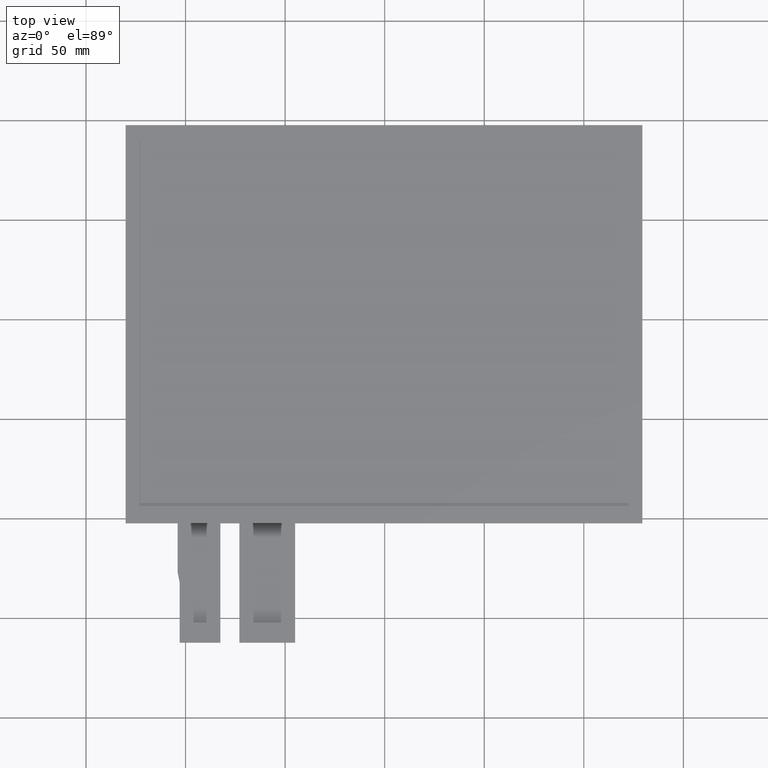
[diagram: clean part render]
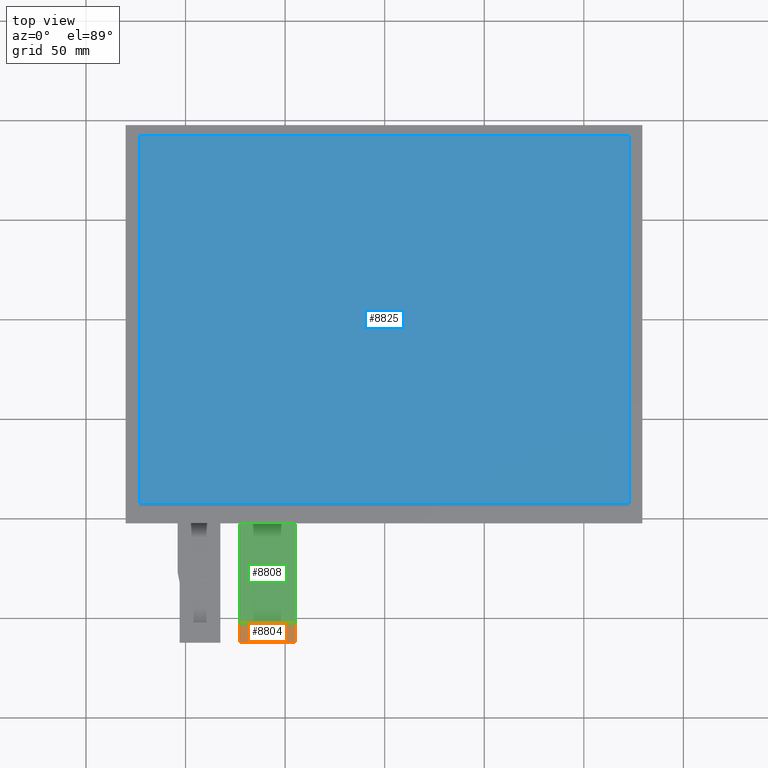
[diagram: same view with three faces highlighted in distinct colors, each labeled with its STEP entity id]
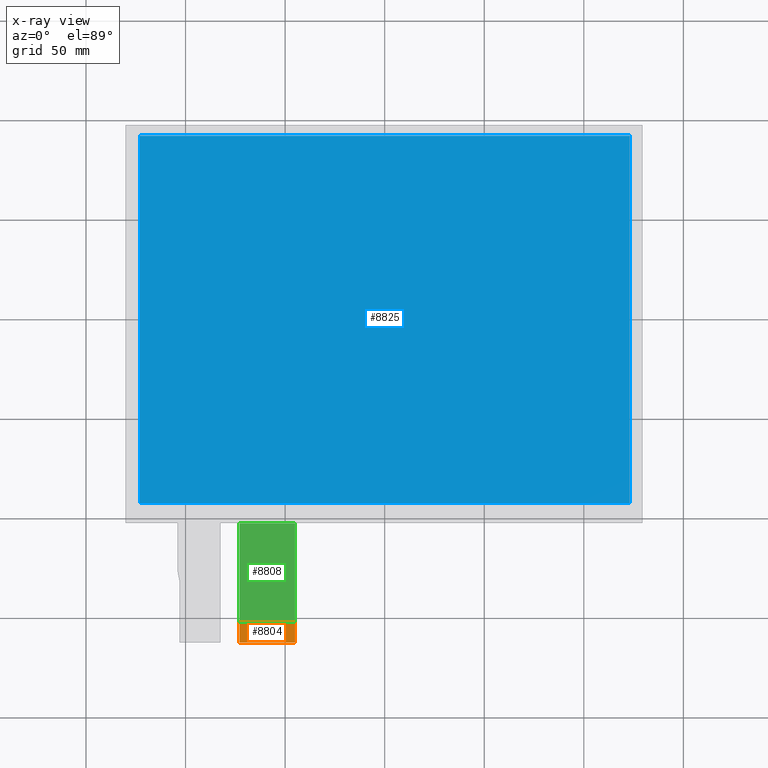
[diagram: x-ray of the same camera — body ghosted, the three highlighted faces saturated]
A machine part, top view with three faces highlighted in distinct colors.
The next image is the same camera in x-ray (body ghosted, the three faces saturated) — at least one of them is partly hidden behind the body in this view.
Their STEP definitions:

[orange] entity #8804 — the highlighted planar face has unit normal (0, 0, 1).
#468=PLANE('',#9258);
#890=FACE_OUTER_BOUND('',#1312,.T.);
#1312=EDGE_LOOP('',(#8279,#8280,#8281,#8282,#8283,#8284));
#1358=LINE('',#11442,#2594);
#2522=LINE('',#13782,#3758);
#2528=LINE('',#13794,#3764);
#2530=LINE('',#13797,#3766);
#2594=VECTOR('',#9330,10.);
#3758=VECTOR('',#11286,10.);
#3764=VECTOR('',#11294,10.);
#3766=VECTOR('',#11298,10.);
#3816=CIRCLE('',#8858,0.2);
#3817=CIRCLE('',#8862,0.2);
#3838=VERTEX_POINT('',#11427);
#3839=VERTEX_POINT('',#11429);
#3843=VERTEX_POINT('',#11441);
#4064=VERTEX_POINT('',#11885);
#4623=VERTEX_POINT('',#13781);
#4628=VERTEX_POINT('',#13793);
#4674=EDGE_CURVE('',#3838,#3839,#3816,.T.);
#4680=EDGE_CURVE('',#3843,#3839,#1358,.T.);
#4902=EDGE_CURVE('',#3843,#4064,#3817,.T.);
#5850=EDGE_CURVE('',#4623,#4064,#2522,.T.);
#5856=EDGE_CURVE('',#4628,#4623,#2528,.T.);
#5858=EDGE_CURVE('',#3838,#4628,#2530,.T.);
#8279=ORIENTED_EDGE('',*,*,#4674,.F.);
#8280=ORIENTED_EDGE('',*,*,#5858,.T.);
#8281=ORIENTED_EDGE('',*,*,#5856,.T.);
#8282=ORIENTED_EDGE('',*,*,#5850,.T.);
#8283=ORIENTED_EDGE('',*,*,#4902,.F.);
#8284=ORIENTED_EDGE('',*,*,#4680,.T.);
#8804=ADVANCED_FACE('',(#890),#468,.T.);
#8858=AXIS2_PLACEMENT_3D('',#11430,#9319,#9320);
#8862=AXIS2_PLACEMENT_3D('',#11886,#9554,#9555);
#9258=AXIS2_PLACEMENT_3D('',#13796,#11296,#11297);
#9319=DIRECTION('center_axis',(0.,0.,-1.));
#9320=DIRECTION('ref_axis',(0.70710678118661,-0.707106781186485,0.));
#9330=DIRECTION('',(1.,0.,0.));
#9554=DIRECTION('center_axis',(0.,0.,-1.));
#9555=DIRECTION('ref_axis',(-0.707106781186485,-0.70710678118661,0.));
#11286=DIRECTION('',(0.,-1.,0.));
#11294=DIRECTION('',(-1.,0.,0.));
#11296=DIRECTION('center_axis',(0.,0.,1.));
#11297=DIRECTION('ref_axis',(1.,0.,0.));
#11298=DIRECTION('',(0.,1.,0.));
#11427=CARTESIAN_POINT('',(-44.9999999999998,-162.15,-0.8));
#11429=CARTESIAN_POINT('',(-45.1999999999998,-162.35,-0.8));
#11430=CARTESIAN_POINT('Origin',(-45.1999999999998,-162.15,-0.8));
#11441=CARTESIAN_POINT('',(-72.7999999999999,-162.35,-0.8));
#11442=CARTESIAN_POINT('',(-73.,-162.35,-0.8));
#11885=CARTESIAN_POINT('',(-73.,-162.15,-0.8));
#11886=CARTESIAN_POINT('Origin',(-72.7999999999999,-162.15,-0.8));
#13781=CARTESIAN_POINT('',(-73.,-152.35,-0.8));
#13782=CARTESIAN_POINT('',(-73.,-152.35,-0.8));
#13793=CARTESIAN_POINT('',(-44.9999999999998,-152.35,-0.8));
#13794=CARTESIAN_POINT('',(-44.9999999999998,-152.35,-0.8));
#13796=CARTESIAN_POINT('Origin',(-58.9999999999999,-157.35,-0.8));
#13797=CARTESIAN_POINT('',(-44.9999999999998,-162.35,-0.8));

[blue] entity #8825 — the highlighted planar face has unit normal (0, 0, 1).
#489=PLANE('',#9279);
#911=FACE_OUTER_BOUND('',#1337,.T.);
#1337=EDGE_LOOP('',(#8391,#8392,#8393,#8394));
#2539=LINE('',#13817,#3775);
#2543=LINE('',#13825,#3779);
#2546=LINE('',#13831,#3782);
#2549=LINE('',#13836,#3785);
#3775=VECTOR('',#11321,10.);
#3779=VECTOR('',#11327,10.);
#3782=VECTOR('',#11332,10.);
#3785=VECTOR('',#11337,10.);
#4631=VERTEX_POINT('',#13815);
#4632=VERTEX_POINT('',#13816);
#4635=VERTEX_POINT('',#13824);
#4637=VERTEX_POINT('',#13830);
#5867=EDGE_CURVE('',#4631,#4632,#2539,.T.);
#5871=EDGE_CURVE('',#4635,#4631,#2543,.T.);
#5874=EDGE_CURVE('',#4637,#4635,#2546,.T.);
#5877=EDGE_CURVE('',#4632,#4637,#2549,.T.);
#8391=ORIENTED_EDGE('',*,*,#5867,.T.);
#8392=ORIENTED_EDGE('',*,*,#5877,.T.);
#8393=ORIENTED_EDGE('',*,*,#5874,.T.);
#8394=ORIENTED_EDGE('',*,*,#5871,.T.);
#8825=ADVANCED_FACE('',(#911),#489,.T.);
#9279=AXIS2_PLACEMENT_3D('',#13888,#11383,#11384);
#11321=DIRECTION('',(1.,0.,0.));
#11327=DIRECTION('',(0.,-1.,0.));
#11332=DIRECTION('',(-1.,0.,0.));
#11337=DIRECTION('',(0.,1.,0.));
#11383=DIRECTION('center_axis',(0.,0.,1.));
#11384=DIRECTION('ref_axis',(1.,0.,0.));
#13815=CARTESIAN_POINT('',(-123.,-92.25,0.));
#13816=CARTESIAN_POINT('',(123.,-92.25,0.));
#13817=CARTESIAN_POINT('',(-61.675,-92.25,0.));
#13824=CARTESIAN_POINT('',(-123.,92.25,0.));
#13825=CARTESIAN_POINT('',(-123.,44.95,0.));
#13830=CARTESIAN_POINT('',(123.,92.25,0.));
#13831=CARTESIAN_POINT('',(61.325,92.25,0.));
#13836=CARTESIAN_POINT('',(123.,-47.3,0.));
#13888=CARTESIAN_POINT('Origin',(-0.349999999999984,-2.34999999999999,0.));

[green] entity #8808 — the highlighted planar face has unit normal (0, 0, 1).
#472=PLANE('',#9262);
#894=FACE_OUTER_BOUND('',#1316,.T.);
#1316=EDGE_LOOP('',(#8303,#8304,#8305,#8306));
#2524=LINE('',#13786,#3760);
#2527=LINE('',#13792,#3763);
#2535=LINE('',#13807,#3771);
#2536=LINE('',#13809,#3772);
#3760=VECTOR('',#11288,10.);
#3763=VECTOR('',#11293,10.);
#3771=VECTOR('',#11309,10.);
#3772=VECTOR('',#11312,10.);
#4624=VERTEX_POINT('',#13783);
#4625=VERTEX_POINT('',#13785);
#4627=VERTEX_POINT('',#13791);
#4630=VERTEX_POINT('',#13805);
#5852=EDGE_CURVE('',#4625,#4624,#2524,.T.);
#5855=EDGE_CURVE('',#4624,#4627,#2527,.T.);
#5863=EDGE_CURVE('',#4627,#4630,#2535,.T.);
#5864=EDGE_CURVE('',#4625,#4630,#2536,.T.);
#8303=ORIENTED_EDGE('',*,*,#5855,.T.);
#8304=ORIENTED_EDGE('',*,*,#5863,.T.);
#8305=ORIENTED_EDGE('',*,*,#5864,.F.);
#8306=ORIENTED_EDGE('',*,*,#5852,.T.);
#8808=ADVANCED_FACE('',(#894),#472,.T.);
#9262=AXIS2_PLACEMENT_3D('',#13808,#11310,#11311);
#11288=DIRECTION('',(7.40148683083438E-16,-1.,0.));
#11293=DIRECTION('',(1.,0.,0.));
#11309=DIRECTION('',(-2.96059473233375E-16,1.,0.));
#11310=DIRECTION('center_axis',(0.,0.,1.));
#11311=DIRECTION('ref_axis',(1.,0.,0.));
#11312=DIRECTION('',(1.,2.05359172185E-16,0.));
#13783=CARTESIAN_POINT('',(-73.,-152.35,-1.1));
#13785=CARTESIAN_POINT('',(-73.,-102.35,-1.1));
#13786=CARTESIAN_POINT('',(-73.,-102.35,-1.1));
#13791=CARTESIAN_POINT('',(-44.9999999999998,-152.35,-1.1));
#13792=CARTESIAN_POINT('',(-51.9999999999999,-152.35,-1.1));
#13805=CARTESIAN_POINT('',(-44.9999999999998,-102.35,-1.1));
#13807=CARTESIAN_POINT('',(-44.9999999999998,-162.35,-1.1));
#13808=CARTESIAN_POINT('Origin',(-58.9999999999999,-132.35,-1.1));
#13809=CARTESIAN_POINT('',(35.2000000000001,-102.35,-1.1));